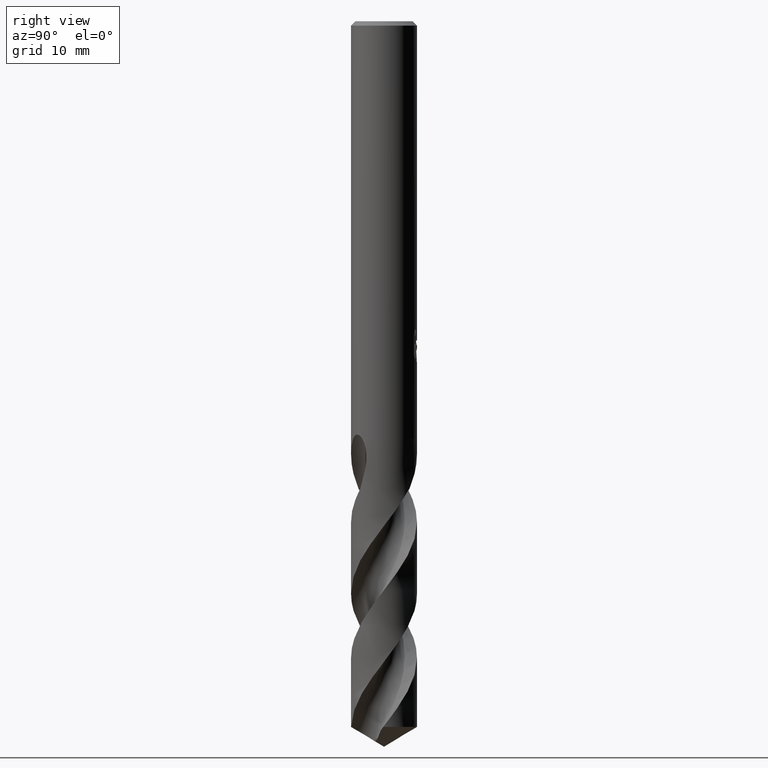
[diagram: clean part render]
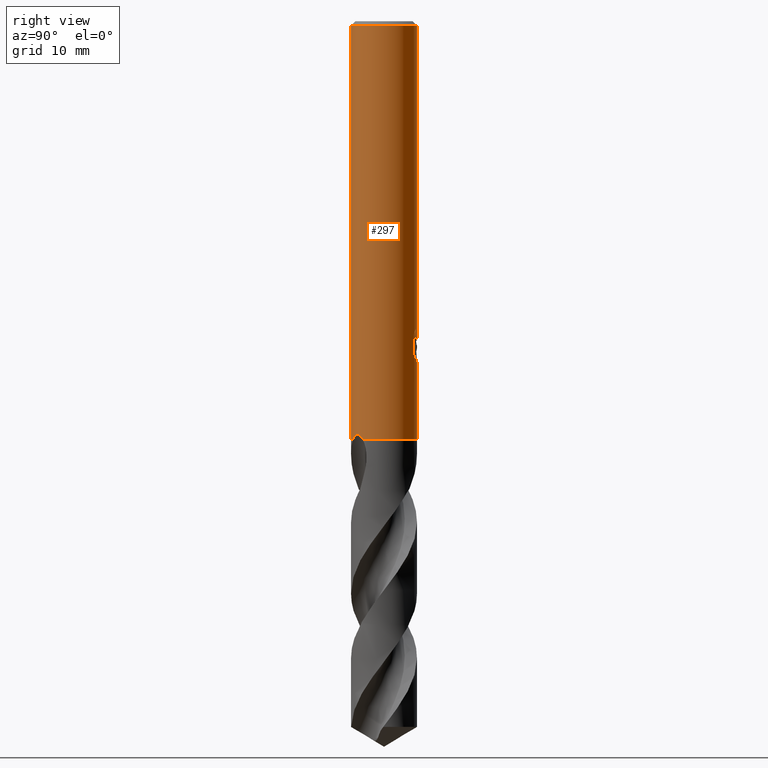
[diagram: same view with one face highlighted and labeled with its STEP entity id]
A machine part, right view. The second image highlights one B-rep face of the part: STEP entity #297.
In plain terms, the highlighted cylindrical surface (edge-blend (fillet) strip) has radius 3 mm, axis along (-0, -0, 1).
Its self-contained STEP definition (entity closure, byte-faithful):
#271=VERTEX_POINT('',#741);
#273=VERTEX_POINT('',#743);
#297=ADVANCED_FACE('',(#768),#769,.T.);
#303=EDGE_CURVE('',#471,#351,#775,.T.);
#305=EDGE_CURVE('',#419,#397,#777,.T.);
#315=VERTEX_POINT('',#788);
#317=EDGE_CURVE('',#547,#471,#790,.T.);
#339=EDGE_CURVE('',#315,#571,#814,.T.);
#351=VERTEX_POINT('',#829);
#373=VERTEX_POINT('',#852);
#393=EDGE_CURVE('',#617,#465,#875,.T.);
#397=VERTEX_POINT('',#880);
#413=EDGE_CURVE('',#615,#419,#896,.T.);
#417=EDGE_CURVE('',#479,#615,#901,.T.);
#419=VERTEX_POINT('',#903);
#455=EDGE_CURVE('',#571,#273,#941,.T.);
#465=VERTEX_POINT('',#952);
#471=VERTEX_POINT('',#959);
#479=VERTEX_POINT('',#967);
#495=EDGE_CURVE('',#373,#273,#985,.T.);
#537=EDGE_CURVE('',#547,#479,#1032,.T.);
#547=VERTEX_POINT('',#1042);
#559=EDGE_CURVE('',#465,#271,#1055,.T.);
#571=VERTEX_POINT('',#1067);
#575=EDGE_CURVE('',#373,#271,#1072,.T.);
#615=VERTEX_POINT('',#1114);
#617=VERTEX_POINT('',#1116);
#645=EDGE_CURVE('',#397,#617,#1148,.T.);
#663=EDGE_CURVE('',#315,#351,#1166,.T.);
#741=CARTESIAN_POINT('',(2.90711642970388E-015,3.0,-29.0232688117743));
#743=CARTESIAN_POINT('',(3.67381906146713E-016,-3.0,-0.399999999999999));
#768=FACE_OUTER_BOUND('',#2279,.T.);
#769=CYLINDRICAL_SURFACE('',#2280,3.0);
#775=CIRCLE('',#2340,3.0);
#777=B_SPLINE_CURVE_WITH_KNOTS('',3,(#2343,#2344,#2345,#2346,#2347,#2348,#2349,#2350),.UNSPECIFIED.,.F.,.F.,(4,2,2,4),(8.17446522132897,8.48751487521068,8.80056452909239,9.43014514523744),.UNSPECIFIED.);
#788=CARTESIAN_POINT('',(1.02400952250009,-2.81982348699863,-38.0));
#790=LINE('',#2370,#2371);
#814=CIRCLE('',#2583,3.0);
#829=CARTESIAN_POINT('',(2.27220909638314,-1.95884298051521,-38.0));
#852=CARTESIAN_POINT('',(0.0,3.0,-0.399999999999999));
#875=B_SPLINE_CURVE_WITH_KNOTS('',3,(#2945,#2946,#2947,#2948,#2949,#2950,#2951,#2952),.UNSPECIFIED.,.F.,.F.,(4,2,2,4),(0.629580638580865,1.25916127716173,1.57221094126725,1.88526060537277),.UNSPECIFIED.);
#880=CARTESIAN_POINT('',(1.33721006514658,2.68549236485056,-30.2901657003257));
#896=LINE('',#3011,#3012);
#901=ELLIPSE('',#3018,9.14398372010932,3.0);
#903=CARTESIAN_POINT('',(0.873560781758956,2.86999852971612,-30.7587351791531));
#941=LINE('',#3185,#3186);
#952=CARTESIAN_POINT('',(0.799431726384364,2.89152363207533,-28.000000276873));
#959=CARTESIAN_POINT('',(-3.67381906146713E-016,3.0,-38.0));
#967=CARTESIAN_POINT('',(0.29010312703583,2.98594041730307,-30.9998328990228));
#985=CIRCLE('',#3298,3.0);
#1032=B_SPLINE_CURVE_WITH_KNOTS('',3,(#3461,#3462,#3463,#3464,#3465,#3466,#3467,#3468,#3469,#3470,#3471,#3472,#3473,#3474,#3475,#3476),.UNSPECIFIED.,.F.,.F.,(4,2,2,2,2,2,2,4),(5.66023402257373,6.29060333517104,6.60504483258975,6.91948633000846,7.23392782742717,7.54836932484587,7.86141901111221,8.17446869737855),.UNSPECIFIED.);
#1042=CARTESIAN_POINT('',(-5.79783325419715E-016,3.0,-31.0310253601033));
#1055=B_SPLINE_CURVE_WITH_KNOTS('',3,(#3518,#3519,#3520,#3521,#3522,#3523,#3524,#3525,#3526,#3527,#3528,#3529,#3530,#3531,#3532,#3533,#3534,#3535,#3536,#3537,#3538,#3539,#3540,#3541,#3542,#3543,#3544),.UNSPECIFIED.,.F.,.F.,(4,2,3,2,2,2,2,2,2,2,2,2,4),(-0.54422824842136,-0.27211412421068,0.0,0.272114124210678,0.544228248421357,0.817906359646674,1.09158447087199,1.36255924571499,1.63353402055798,1.90530456554772,2.17707511053746,2.4488456555272,2.72061620051693),.UNSPECIFIED.);
#1067=CARTESIAN_POINT('',(3.67381906146713E-016,-3.0,-38.0));
#1072=LINE('',#3637,#3638);
#1114=CARTESIAN_POINT('',(0.873560781758957,2.86999852971612,-29.3198931596091));
#1116=CARTESIAN_POINT('',(1.33721006514658,2.68549236485057,-28.5150484364821));
#1148=LINE('',#4430,#4431);
#1166=B_SPLINE_CURVE_WITH_KNOTS('',3,(#4477,#4478,#4479,#4480,#4481,#4482,#4483,#4484,#4485,#4486,#4487,#4488),.UNSPECIFIED.,.F.,.F.,(4,2,2,2,2,4),(0.0,0.566571146386598,0.910751921865325,1.19368021037838,1.47913200193668,1.78513918168508),.UNSPECIFIED.);
#2279=EDGE_LOOP('',(#4917,#4918,#4919,#4920,#4921,#4922,#4923,#4924,#4925,#4926,#4927,#4928,#4929,#4930));
#2280=AXIS2_PLACEMENT_3D('',#4931,#4932,#4933);
#2340=AXIS2_PLACEMENT_3D('',#4934,#4935,#4936);
#2343=CARTESIAN_POINT('',(0.600330703923333,2.93932016730517,-30.9050364278969));
#2344=CARTESIAN_POINT('',(0.700343038443486,2.91889351228921,-30.8631861412044));
#2345=CARTESIAN_POINT('',(0.795685584213128,2.8940165604303,-30.8114119954011));
#2346=CARTESIAN_POINT('',(0.971352589628262,2.83988055167306,-30.692706383359));
#2347=CARTESIAN_POINT('',(1.0516835476539,2.81066216129401,-30.6257659914415));
#2348=CARTESIAN_POINT('',(1.26543925920527,2.72440179743877,-30.4122346680481));
#2349=CARTESIAN_POINT('',(1.3899740959159,2.66030349847411,-30.2319488826214));
#2350=CARTESIAN_POINT('',(1.47371594109741,2.61307507066968,-30.0321377817992));
#2370=CARTESIAN_POINT('',(-3.67381906146713E-016,3.0,-16.7));
#2371=VECTOR('',#4947,1.0);
#2583=AXIS2_PLACEMENT_3D('',#4975,#4976,#4977);
#2945=CARTESIAN_POINT('',(1.47371594887933,2.61307506628085,-28.7730763684242));
#2946=CARTESIAN_POINT('',(1.38997410067862,2.66030349611674,-28.5732652606136));
#2947=CARTESIAN_POINT('',(1.2654392594963,2.72440179761724,-28.3929794688919));
#2948=CARTESIAN_POINT('',(1.05168354029617,2.81066216411606,-28.1794481382038));
#2949=CARTESIAN_POINT('',(0.971352579549231,2.83988055521709,-28.1125077441098));
#2950=CARTESIAN_POINT('',(0.795685568183073,2.89401656493242,-27.9938021282019));
#2951=CARTESIAN_POINT('',(0.700343019183212,2.91889351702519,-27.9420279807093));
#2952=CARTESIAN_POINT('',(0.600330681290245,2.93932017192779,-27.9001776926585));
#3011=CARTESIAN_POINT('',(0.873560781758957,2.86999852971612,-30.0393141693811));
#3012=VECTOR('',#5060,1.0);
#3018=AXIS2_PLACEMENT_3D('',#5070,#5071,#5072);
#3185=CARTESIAN_POINT('',(3.67381906146713E-016,-3.0,-16.7));
#3186=VECTOR('',#5104,1.0);
#3298=AXIS2_PLACEMENT_3D('',#5154,#5155,#5156);
#3461=CARTESIAN_POINT('',(-1.53050642192579,2.58022287650581,-30.0319811255889));
#3462=CARTESIAN_POINT('',(-1.44691631248335,2.62980577312329,-30.2314887010961));
#3463=CARTESIAN_POINT('',(-1.32276760444366,2.69707077181617,-30.4113258593841));
#3464=CARTESIAN_POINT('',(-1.10973155101076,2.78826898930335,-30.6245951706909));
#3465=CARTESIAN_POINT('',(-1.02948996220254,2.81934349084513,-30.6916117853674));
#3466=CARTESIAN_POINT('',(-0.853932698223486,2.87738531454781,-30.8105216600777));
#3467=CARTESIAN_POINT('',(-0.758609991487904,2.90431263574779,-30.8624240602538));
#3468=CARTESIAN_POINT('',(-0.558469552260233,2.94934446690523,-30.9464055954533));
#3469=CARTESIAN_POINT('',(-0.45345704144638,2.96746268462387,-30.9785511641911));
#3470=CARTESIAN_POINT('',(-0.240810292537893,2.99223469602914,-31.0209924679526));
#3471=CARTESIAN_POINT('',(-0.133171317626829,2.99887501234033,-31.0312723335086));
#3472=CARTESIAN_POINT('',(0.0759830626177196,3.00085245803086,-31.0312723335086));
#3473=CARTESIAN_POINT('',(0.183273473896685,2.99629272230549,-31.0210815541729));
#3474=CARTESIAN_POINT('',(0.395439152728151,2.97573303917486,-30.9788816901513));
#3475=CARTESIAN_POINT('',(0.500318639064907,2.95974677710468,-30.9468871509919));
#3476=CARTESIAN_POINT('',(0.600330982089903,2.93932011049205,-30.9050368602192));
#3518=CARTESIAN_POINT('',(0.665621182276712,2.92522622060321,-27.8140957881762));
#3519=CARTESIAN_POINT('',(0.728850563417096,2.91083867849353,-27.877518087557));
#3520=CARTESIAN_POINT('',(0.783900459387161,2.89602337967411,-27.9578702196133));
#3521=CARTESIAN_POINT('',(0.857188692916628,2.87518328740958,-28.1345580124299));
#3522=CARTESIAN_POINT('',(0.875400981188567,2.86943777108584,-28.2309373045166));
#3523=CARTESIAN_POINT('',(0.875400981188567,2.86943777108584,-28.3216420125868));
#3524=CARTESIAN_POINT('',(0.875400981188567,2.86943777108584,-28.412346720657));
#3525=CARTESIAN_POINT('',(0.857188692916629,2.87518328740958,-28.5087260127437));
#3526=CARTESIAN_POINT('',(0.783900459387161,2.89602337967411,-28.6854138055602));
#3527=CARTESIAN_POINT('',(0.728850563417096,2.91083867849353,-28.7657659376165));
#3528=CARTESIAN_POINT('',(0.60202838769231,2.93969645569731,-28.8929750586276));
#3529=CARTESIAN_POINT('',(0.521477859529299,2.95568533572518,-28.9483797636259));
#3530=CARTESIAN_POINT('',(0.344299091050148,2.98152194310932,-29.0221641076746));
#3531=CARTESIAN_POINT('',(0.247628172090375,2.99115403786358,-29.0405166027747));
#3532=CARTESIAN_POINT('',(0.0663244946631876,3.00062654348629,-29.0405166027747));
#3533=CARTESIAN_POINT('',(-0.0299285908853346,3.00115720326599,-29.0224875186921));
#3534=CARTESIAN_POINT('',(-0.206881310600536,2.99416773126077,-28.949244373347));
#3535=CARTESIAN_POINT('',(-0.287593937381961,2.98687212067831,-28.8940404490632));
#3536=CARTESIAN_POINT('',(-0.415200117492863,2.97182576996222,-28.7666805419979));
#3537=CARTESIAN_POINT('',(-0.470604049431396,2.96309385107775,-28.6859121102136));
#3538=CARTESIAN_POINT('',(-0.544183869965539,2.95046729924835,-28.5086992019516));
#3539=CARTESIAN_POINT('',(-0.562348199187247,2.94682278104247,-28.41223219425));
#3540=CARTESIAN_POINT('',(-0.562348199187247,2.94682278104247,-28.2310518309235));
#3541=CARTESIAN_POINT('',(-0.54418386996554,2.95046729924835,-28.134584823222));
#3542=CARTESIAN_POINT('',(-0.4706040494314,2.96309385107775,-27.95737191496));
#3543=CARTESIAN_POINT('',(-0.415200117492863,2.97182576996222,-27.8766034831756));
#3544=CARTESIAN_POINT('',(-0.351303479704285,2.97935997575782,-27.812830162452));
#3637=CARTESIAN_POINT('',(-3.67381906146713E-016,3.0,-16.7));
#3638=VECTOR('',#5231,1.0);
#4430=CARTESIAN_POINT('',(1.33721006514658,2.68549236485056,-29.4026070684039));
#4431=VECTOR('',#5336,1.0);
#4477=CARTESIAN_POINT('',(1.02400952250009,-2.81982348699863,-38.0));
#4478=CARTESIAN_POINT('',(1.15466996109983,-2.77237458320835,-37.8721585505645));
#4479=CARTESIAN_POINT('',(1.30089955384537,-2.70879676929085,-37.7524070752747));
#4480=CARTESIAN_POINT('',(1.54419946884868,-2.57419682473317,-37.6315133844407));
#4481=CARTESIAN_POINT('',(1.63831877063902,-2.515749009101,-37.602162333192));
#4482=CARTESIAN_POINT('',(1.80848812215519,-2.39545619521912,-37.5952936335916));
#4483=CARTESIAN_POINT('',(1.88071099267584,-2.33896646251829,-37.6096883794318));
#4484=CARTESIAN_POINT('',(2.01596771167184,-2.22347758630175,-37.6734029299133));
#4485=CARTESIAN_POINT('',(2.07565875844847,-2.16729682246502,-37.7214807300166));
#4486=CARTESIAN_POINT('',(2.18430978789275,-2.05794834019253,-37.8436944219673));
#4487=CARTESIAN_POINT('',(2.2318320178391,-2.00567938652925,-37.919016194777));
#4488=CARTESIAN_POINT('',(2.27220909638314,-1.95884298051521,-38.0));
#4917=ORIENTED_EDGE('',*,*,#575,.F.);
#4918=ORIENTED_EDGE('',*,*,#495,.T.);
#4919=ORIENTED_EDGE('',*,*,#455,.F.);
#4920=ORIENTED_EDGE('',*,*,#339,.F.);
#4921=ORIENTED_EDGE('',*,*,#663,.T.);
#4922=ORIENTED_EDGE('',*,*,#303,.F.);
#4923=ORIENTED_EDGE('',*,*,#317,.F.);
#4924=ORIENTED_EDGE('',*,*,#537,.T.);
#4925=ORIENTED_EDGE('',*,*,#417,.T.);
#4926=ORIENTED_EDGE('',*,*,#413,.T.);
#4927=ORIENTED_EDGE('',*,*,#305,.T.);
#4928=ORIENTED_EDGE('',*,*,#645,.T.);
#4929=ORIENTED_EDGE('',*,*,#393,.T.);
#4930=ORIENTED_EDGE('',*,*,#559,.T.);
#4931=CARTESIAN_POINT('',(0.0,0.0,-16.7));
#4932=DIRECTION('',(-0.0,-0.0,1.0));
#4933=DIRECTION('',(0.0,1.0,0.0));
#4934=CARTESIAN_POINT('',(0.0,0.0,-38.0));
#4935=DIRECTION('',(0.0,0.0,-1.0));
#4936=DIRECTION('',(0.0,-1.0,0.0));
#4947=DIRECTION('',(0.0,0.0,-1.0));
#4975=CARTESIAN_POINT('',(0.0,0.0,-38.0));
#4976=DIRECTION('',(0.0,0.0,-1.0));
#4977=DIRECTION('',(0.0,-1.0,0.0));
#5060=DIRECTION('',(0.0,0.0,-1.0));
#5070=CARTESIAN_POINT('',(0.0,0.0,-31.8351219173269));
#5071=DIRECTION('',(0.944648353914092,0.0,-0.328084573619969));
#5072=DIRECTION('',(0.328084573619969,-0.0,0.944648353914092));
#5104=DIRECTION('',(-0.0,-0.0,1.0));
#5154=CARTESIAN_POINT('',(0.0,0.0,-0.399999999999999));
#5155=DIRECTION('',(0.0,0.0,-1.0));
#5156=DIRECTION('',(0.0,1.0,0.0));
#5231=DIRECTION('',(0.0,0.0,-1.0));
#5336=DIRECTION('',(-0.0,-0.0,1.0));